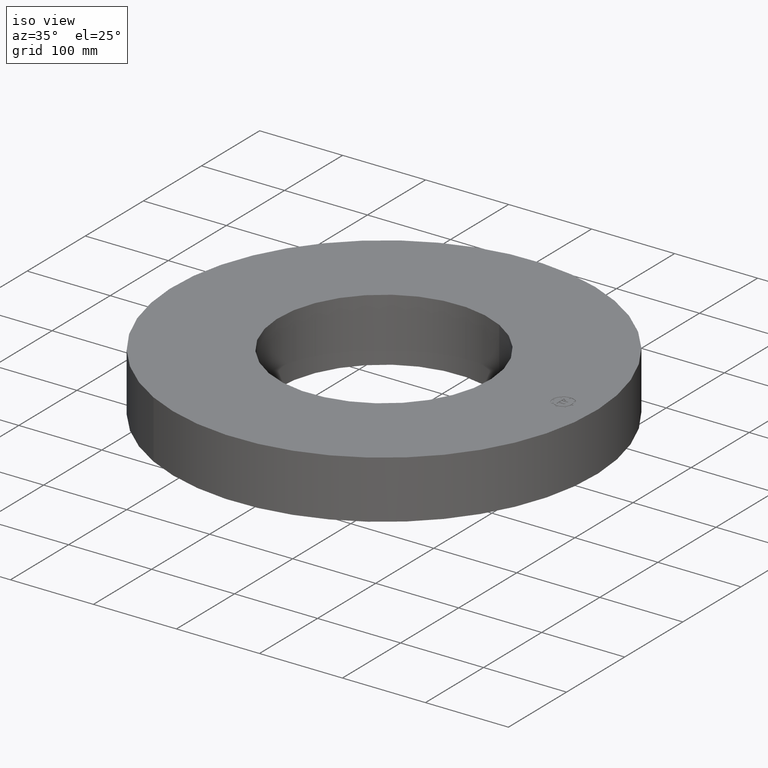
[diagram: clean part render]
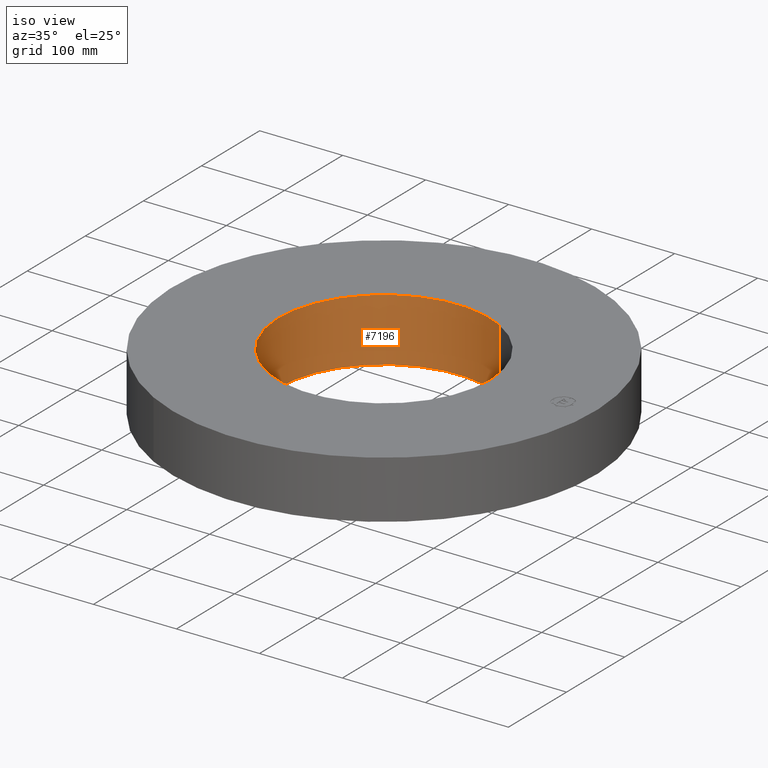
[diagram: same view with one face highlighted and labeled with its STEP entity id]
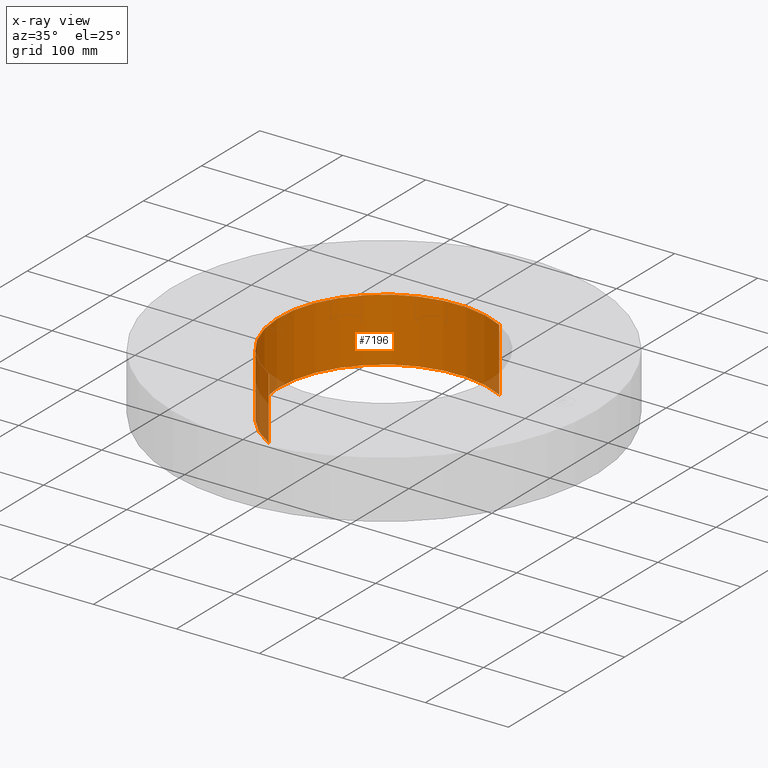
[diagram: x-ray of the same camera — body ghosted, the highlighted face saturated]
A machine part, iso view. The second image highlights one B-rep face of the part: STEP entity #7196.
The next image is the same camera in x-ray: the body ghosted, the highlighted face saturated — about 5% of this face is hidden behind the body in this view.
In plain terms, the highlighted cylindrical surface (partial cylindrical patch) has radius 127 mm, axis along (0, 0, -1).
Its self-contained STEP definition (entity closure, byte-faithful):
#7146=AXIS2_PLACEMENT_3D('Circle Axis2P3D',#7144,#7145,$) ;
#7157=AXIS2_PLACEMENT_3D('Cylinder Axis2P3D',#7154,#7155,#7156) ;
#7187=AXIS2_PLACEMENT_3D('Circle Axis2P3D',#7185,#7186,$) ;
#7139=CARTESIAN_POINT('Vertex',(2.39712769303,4.38791280947,-0.250000000001)) ;
#7141=CARTESIAN_POINT('Vertex',(-2.39712769303,-4.38791280947,-0.250000000001)) ;
#7144=CARTESIAN_POINT('Axis2P3D Location',(0.,0.,-0.250000000001)) ;
#7154=CARTESIAN_POINT('Axis2P3D Location',(0.,0.,1.25000000001)) ;
#7163=CARTESIAN_POINT('Vertex',(2.39712769303,4.38791280947,2.75000000001)) ;
#7165=CARTESIAN_POINT('Vertex',(-2.39712769303,-4.38791280947,2.75000000001)) ;
#7168=CARTESIAN_POINT('Line Origine',(2.39712769303,4.38791280947,1.25000000001)) ;
#7173=CARTESIAN_POINT('Line Origine',(-2.39712769303,-4.38791280947,1.25000000001)) ;
#7185=CARTESIAN_POINT('Axis2P3D Location',(0.,0.,2.75000000001)) ;
#7145=DIRECTION('Axis2P3D Direction',(0.,0.,-0.0393700787402)) ;
#7155=DIRECTION('Axis2P3D Direction',(0.,0.,-0.0393700787402)) ;
#7156=DIRECTION('Axis2P3D XDirection',(-0.0188750212049,-0.0345504945626,0.)) ;
#7169=DIRECTION('Vector Direction',(0.,0.,-0.0393700787402)) ;
#7174=DIRECTION('Vector Direction',(0.,0.,-0.0393700787402)) ;
#7186=DIRECTION('Axis2P3D Direction',(0.,0.,-0.0393700787402)) ;
#7170=VECTOR('Line Direction',#7169,0.0393700787402) ;
#7175=VECTOR('Line Direction',#7174,0.0393700787402) ;
#7191=ORIENTED_EDGE('',*,*,#7189,.F.) ;
#7192=ORIENTED_EDGE('',*,*,#7177,.T.) ;
#7193=ORIENTED_EDGE('',*,*,#7148,.T.) ;
#7194=ORIENTED_EDGE('',*,*,#7172,.F.) ;
#7196=ADVANCED_FACE('PartBody',(#7195),#7158,.F.) ;
#7147=CIRCLE('generated circle',#7146,5.00000000002) ;
#7188=CIRCLE('generated circle',#7187,5.00000000002) ;
#7158=CYLINDRICAL_SURFACE('generated cylinder',#7157,5.00000000002) ;
#7148=EDGE_CURVE('',#7142,#7140,#7147,.T.) ;
#7172=EDGE_CURVE('',#7164,#7140,#7171,.T.) ;
#7177=EDGE_CURVE('',#7166,#7142,#7176,.T.) ;
#7189=EDGE_CURVE('',#7166,#7164,#7188,.T.) ;
#7190=EDGE_LOOP('',(#7191,#7192,#7193,#7194)) ;
#7195=FACE_OUTER_BOUND('',#7190,.T.) ;
#7171=LINE('Line',#7168,#7170) ;
#7176=LINE('Line',#7173,#7175) ;
#7140=VERTEX_POINT('',#7139) ;
#7142=VERTEX_POINT('',#7141) ;
#7164=VERTEX_POINT('',#7163) ;
#7166=VERTEX_POINT('',#7165) ;